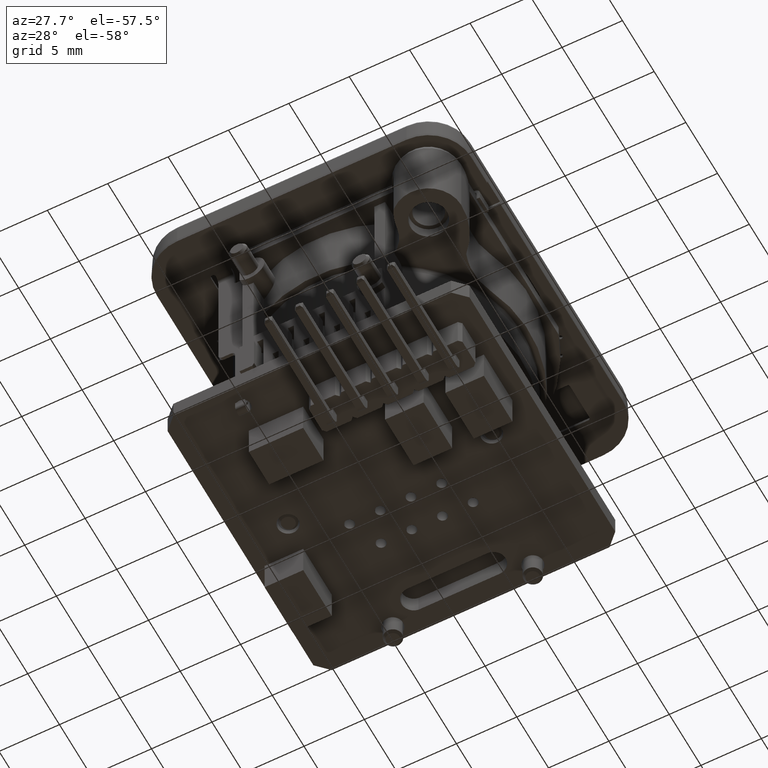
[diagram: clean part render]
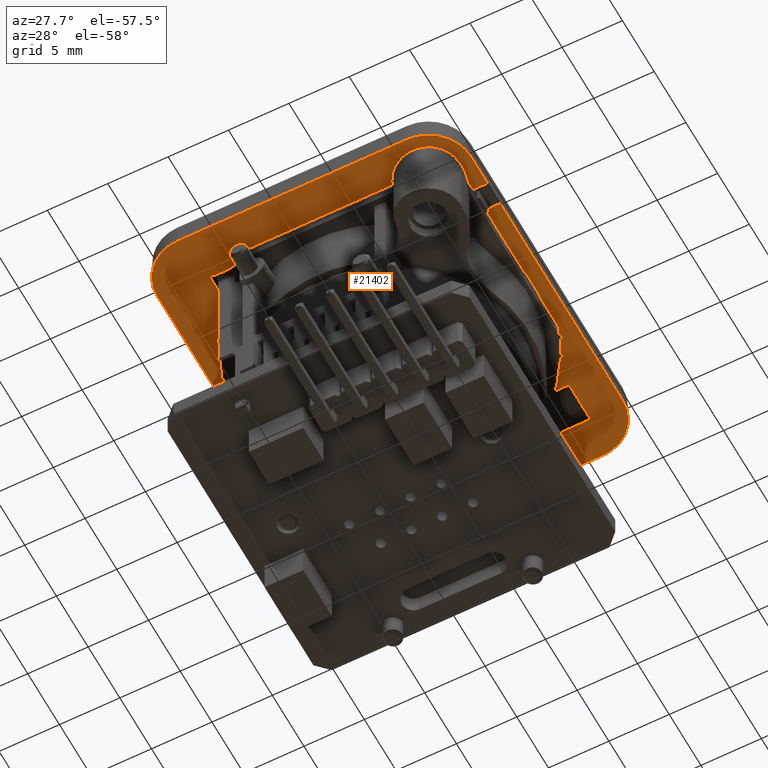
[diagram: same view with one face highlighted and labeled with its STEP entity id]
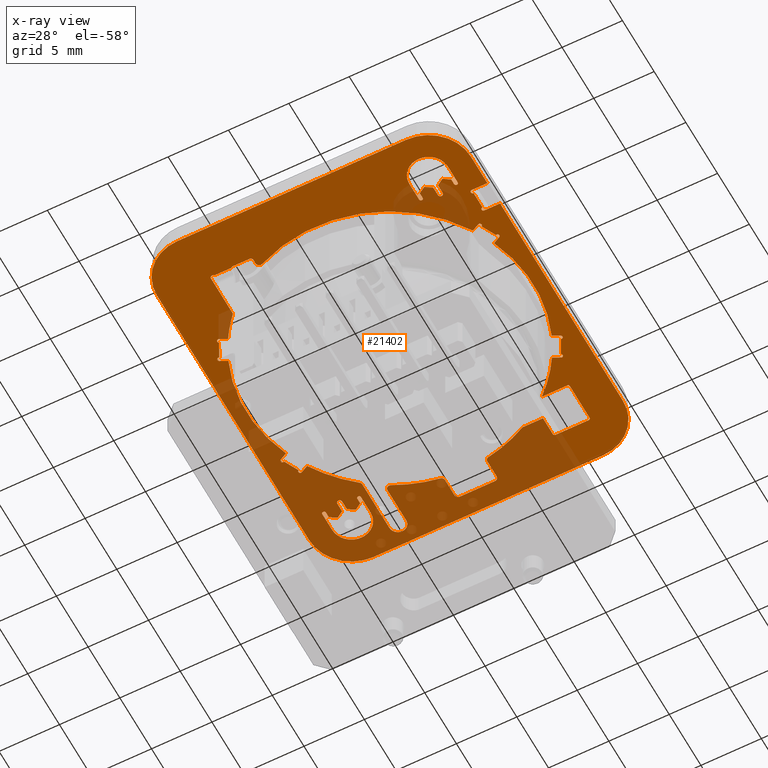
[diagram: x-ray of the same camera — body ghosted, the highlighted face saturated]
A machine part, auxiliary view. The second image highlights one B-rep face of the part: STEP entity #21402.
The next image is the same camera in x-ray: the body ghosted, the highlighted face saturated — about 38% of this face is hidden behind the body in this view.
In plain terms, the highlighted planar face has unit normal (0, 0, 1).
Its self-contained STEP definition (entity closure, byte-faithful):
#18491=DIRECTION('',(0.E0,1.E0,0.E0));
#18492=VECTOR('',#18491,1.4E0);
#18493=CARTESIAN_POINT('',(1.17E1,-9.1E0,-4.8E0));
#18494=LINE('',#18493,#18492);
#18495=CARTESIAN_POINT('',(1.17E1,-7.55E0,-4.8E0));
#18496=DIRECTION('',(0.E0,0.E0,1.E0));
#18497=DIRECTION('',(0.E0,1.E0,0.E0));
#18498=AXIS2_PLACEMENT_3D('',#18495,#18496,#18497);
#18500=DIRECTION('',(-1.E0,0.E0,0.E0));
#18501=VECTOR('',#18500,1.3E0);
#18502=CARTESIAN_POINT('',(1.3E1,-7.4E0,-4.8E0));
#18503=LINE('',#18502,#18501);
#18504=DIRECTION('',(0.E0,1.E0,0.E0));
#18505=VECTOR('',#18504,1.94E1);
#18506=CARTESIAN_POINT('',(1.3E1,-7.4E0,-4.8E0));
#18507=LINE('',#18506,#18505);
#18508=CARTESIAN_POINT('',(9.5E0,1.2E1,-4.8E0));
#18509=DIRECTION('',(0.E0,0.E0,1.E0));
#18510=DIRECTION('',(1.E0,0.E0,0.E0));
#18511=AXIS2_PLACEMENT_3D('',#18508,#18509,#18510);
#18513=DIRECTION('',(-1.E0,0.E0,0.E0));
#18514=VECTOR('',#18513,1.9E1);
#18515=CARTESIAN_POINT('',(9.5E0,1.55E1,-4.8E0));
#18516=LINE('',#18515,#18514);
#18517=CARTESIAN_POINT('',(-9.5E0,1.2E1,-4.8E0));
#18518=DIRECTION('',(0.E0,0.E0,1.E0));
#18519=DIRECTION('',(0.E0,1.E0,0.E0));
#18520=AXIS2_PLACEMENT_3D('',#18517,#18518,#18519);
#18522=DIRECTION('',(0.E0,-1.E0,0.E0));
#18523=VECTOR('',#18522,2.4E1);
#18524=CARTESIAN_POINT('',(-1.3E1,1.2E1,-4.8E0));
#18525=LINE('',#18524,#18523);
#18526=CARTESIAN_POINT('',(-9.5E0,-1.2E1,-4.8E0));
#18527=DIRECTION('',(0.E0,0.E0,1.E0));
#18528=DIRECTION('',(-1.E0,0.E0,0.E0));
#18529=AXIS2_PLACEMENT_3D('',#18526,#18527,#18528);
#18531=DIRECTION('',(1.E0,0.E0,0.E0));
#18532=VECTOR('',#18531,1.9E1);
#18533=CARTESIAN_POINT('',(-9.5E0,-1.55E1,-4.8E0));
#18534=LINE('',#18533,#18532);
#18535=CARTESIAN_POINT('',(9.5E0,-1.2E1,-4.8E0));
#18536=DIRECTION('',(0.E0,0.E0,1.E0));
#18537=DIRECTION('',(0.E0,-1.E0,0.E0));
#18538=AXIS2_PLACEMENT_3D('',#18535,#18536,#18537);
#18540=DIRECTION('',(0.E0,1.E0,0.E0));
#18541=VECTOR('',#18540,2.6E0);
#18542=CARTESIAN_POINT('',(1.3E1,-1.2E1,-4.8E0));
#18543=LINE('',#18542,#18541);
#18544=DIRECTION('',(-1.E0,0.E0,0.E0));
#18545=VECTOR('',#18544,1.3E0);
#18546=CARTESIAN_POINT('',(1.3E1,-9.4E0,-4.8E0));
#18547=LINE('',#18546,#18545);
#18548=CARTESIAN_POINT('',(1.17E1,-9.25E0,-4.8E0));
#18549=DIRECTION('',(0.E0,0.E0,1.E0));
#18550=DIRECTION('',(0.E0,1.E0,0.E0));
#18551=AXIS2_PLACEMENT_3D('',#18548,#18549,#18550);
#18553=DIRECTION('',(0.E0,-1.E0,0.E0));
#18554=VECTOR('',#18553,1.537528578014E0);
#18555=CARTESIAN_POINT('',(-1.11E1,1.2E1,-4.8E0));
#18556=LINE('',#18555,#18554);
#18557=CARTESIAN_POINT('',(-9.5E0,1.2E1,-4.8E0));
#18558=DIRECTION('',(0.E0,0.E0,1.E0));
#18559=DIRECTION('',(1.E0,0.E0,0.E0));
#18560=AXIS2_PLACEMENT_3D('',#18557,#18558,#18559);
#18562=DIRECTION('',(0.E0,1.E0,0.E0));
#18563=VECTOR('',#18562,1.537528578014E0);
#18564=CARTESIAN_POINT('',(-7.9E0,1.046247142199E1,-4.8E0));
#18565=LINE('',#18564,#18563);
#18566=CARTESIAN_POINT('',(-8.05E0,1.046247142199E1,-4.8E0));
#18567=DIRECTION('',(0.E0,0.E0,1.E0));
#18568=DIRECTION('',(-1.E0,0.E0,0.E0));
#18569=AXIS2_PLACEMENT_3D('',#18566,#18567,#18568);
#18571=DIRECTION('',(0.E0,-1.E0,0.E0));
#18572=VECTOR('',#18571,4.496113565559E-1);
#18573=CARTESIAN_POINT('',(-8.2E0,1.091208277854E1,-4.8E0));
#18574=LINE('',#18573,#18572);
#18575=DIRECTION('',(8.433914458129E-1,-5.372996083468E-1,0.E0));
#18576=VECTOR('',#18575,6.521289760888E-1);
#18577=CARTESIAN_POINT('',(-8.75E0,1.126247142199E1,-4.8E0));
#18578=LINE('',#18577,#18576);
#18579=DIRECTION('',(8.433914458129E-1,5.372996083468E-1,0.E0));
#18580=VECTOR('',#18579,6.521289760888E-1);
#18581=CARTESIAN_POINT('',(-9.3E0,1.091208277854E1,-4.8E0));
#18582=LINE('',#18581,#18580);
#18583=DIRECTION('',(0.E0,1.E0,0.E0));
#18584=VECTOR('',#18583,7.496113565559E-1);
#18585=CARTESIAN_POINT('',(-9.3E0,1.016247142199E1,-4.8E0));
#18586=LINE('',#18585,#18584);
#18587=CARTESIAN_POINT('',(-9.5E0,1.016247142199E1,-4.8E0));
#18588=DIRECTION('',(0.E0,0.E0,1.E0));
#18589=DIRECTION('',(-1.E0,0.E0,0.E0));
#18590=AXIS2_PLACEMENT_3D('',#18587,#18588,#18589);
#18592=DIRECTION('',(0.E0,-1.E0,0.E0));
#18593=VECTOR('',#18592,7.496113565559E-1);
#18594=CARTESIAN_POINT('',(-9.7E0,1.091208277854E1,-4.8E0));
#18595=LINE('',#18594,#18593);
#18596=DIRECTION('',(8.433914458129E-1,-5.372996083468E-1,0.E0));
#18597=VECTOR('',#18596,6.521289760888E-1);
#18598=CARTESIAN_POINT('',(-1.025E1,1.126247142199E1,-4.8E0));
#18599=LINE('',#18598,#18597);
#18600=DIRECTION('',(8.433914458129E-1,5.372996083468E-1,0.E0));
#18601=VECTOR('',#18600,6.521289760888E-1);
#18602=CARTESIAN_POINT('',(-1.08E1,1.091208277854E1,-4.8E0));
#18603=LINE('',#18602,#18601);
#18604=DIRECTION('',(0.E0,1.E0,0.E0));
#18605=VECTOR('',#18604,4.496113565559E-1);
#18606=CARTESIAN_POINT('',(-1.08E1,1.046247142199E1,-4.8E0));
#18607=LINE('',#18606,#18605);
#18608=CARTESIAN_POINT('',(-1.095E1,1.046247142199E1,-4.8E0));
#18609=DIRECTION('',(0.E0,0.E0,1.E0));
#18610=DIRECTION('',(-1.E0,1.184237892933E-14,0.E0));
#18611=AXIS2_PLACEMENT_3D('',#18608,#18609,#18610);
#18613=DIRECTION('',(0.E0,1.E0,0.E0));
#18614=VECTOR('',#18613,1.537528578014E0);
#18615=CARTESIAN_POINT('',(1.11E1,-1.2E1,-4.8E0));
#18616=LINE('',#18615,#18614);
#18617=CARTESIAN_POINT('',(9.5E0,-1.2E1,-4.8E0));
#18618=DIRECTION('',(0.E0,0.E0,1.E0));
#18619=DIRECTION('',(-1.E0,0.E0,0.E0));
#18620=AXIS2_PLACEMENT_3D('',#18617,#18618,#18619);
#18622=DIRECTION('',(0.E0,-1.E0,0.E0));
#18623=VECTOR('',#18622,1.537528578014E0);
#18624=CARTESIAN_POINT('',(7.9E0,-1.046247142199E1,-4.8E0));
#18625=LINE('',#18624,#18623);
#18626=CARTESIAN_POINT('',(8.05E0,-1.046247142199E1,-4.8E0));
#18627=DIRECTION('',(0.E0,0.E0,1.E0));
#18628=DIRECTION('',(1.E0,0.E0,0.E0));
#18629=AXIS2_PLACEMENT_3D('',#18626,#18627,#18628);
#18631=DIRECTION('',(0.E0,1.E0,0.E0));
#18632=VECTOR('',#18631,4.496113565559E-1);
#18633=CARTESIAN_POINT('',(8.2E0,-1.091208277854E1,-4.8E0));
#18634=LINE('',#18633,#18632);
#18635=DIRECTION('',(-8.433914458129E-1,5.372996083468E-1,0.E0));
#18636=VECTOR('',#18635,6.521289760888E-1);
#18637=CARTESIAN_POINT('',(8.75E0,-1.126247142199E1,-4.8E0));
#18638=LINE('',#18637,#18636);
#18639=DIRECTION('',(-8.433914458129E-1,-5.372996083468E-1,0.E0));
#18640=VECTOR('',#18639,6.521289760888E-1);
#18641=CARTESIAN_POINT('',(9.3E0,-1.091208277854E1,-4.8E0));
#18642=LINE('',#18641,#18640);
#18643=DIRECTION('',(0.E0,-1.E0,0.E0));
#18644=VECTOR('',#18643,7.496113565559E-1);
#18645=CARTESIAN_POINT('',(9.3E0,-1.016247142199E1,-4.8E0));
#18646=LINE('',#18645,#18644);
#18647=CARTESIAN_POINT('',(9.5E0,-1.016247142199E1,-4.8E0));
#18648=DIRECTION('',(0.E0,0.E0,1.E0));
#18649=DIRECTION('',(1.E0,0.E0,0.E0));
#18650=AXIS2_PLACEMENT_3D('',#18647,#18648,#18649);
#18652=DIRECTION('',(0.E0,1.E0,0.E0));
#18653=VECTOR('',#18652,7.496113565559E-1);
#18654=CARTESIAN_POINT('',(9.7E0,-1.091208277854E1,-4.8E0));
#18655=LINE('',#18654,#18653);
#18656=DIRECTION('',(-8.433914458129E-1,5.372996083468E-1,0.E0));
#18657=VECTOR('',#18656,6.521289760888E-1);
#18658=CARTESIAN_POINT('',(1.025E1,-1.126247142199E1,-4.8E0));
#18659=LINE('',#18658,#18657);
#18660=DIRECTION('',(-8.433914458129E-1,-5.372996083468E-1,0.E0));
#18661=VECTOR('',#18660,6.521289760888E-1);
#18662=CARTESIAN_POINT('',(1.08E1,-1.091208277854E1,-4.8E0));
#18663=LINE('',#18662,#18661);
#18664=DIRECTION('',(0.E0,-1.E0,0.E0));
#18665=VECTOR('',#18664,4.496113565559E-1);
#18666=CARTESIAN_POINT('',(1.08E1,-1.046247142199E1,-4.8E0));
#18667=LINE('',#18666,#18665);
#18668=CARTESIAN_POINT('',(1.095E1,-1.046247142199E1,-4.8E0));
#18669=DIRECTION('',(0.E0,0.E0,1.E0));
#18670=DIRECTION('',(1.E0,0.E0,0.E0));
#18671=AXIS2_PLACEMENT_3D('',#18668,#18669,#18670);
#18673=DIRECTION('',(0.E0,9.991880347481E-1,4.028984011081E-2));
#18674=VECTOR('',#18673,1.551259568867E0);
#18675=CARTESIAN_POINT('',(7.1E0,1.06E1,-4.8E0));
#18676=LINE('',#18675,#18674);
#18677=CARTESIAN_POINT('',(7.25E0,1.215E1,-4.8E0));
#18678=DIRECTION('',(0.E0,0.E0,1.E0));
#18679=DIRECTION('',(0.E0,1.E0,0.E0));
#18680=AXIS2_PLACEMENT_3D('',#18677,#18678,#18679);
#18682=DIRECTION('',(1.E0,0.E0,0.E0));
#18683=VECTOR('',#18682,2.75E0);
#18684=CARTESIAN_POINT('',(7.25E0,1.23E1,-4.8E0));
#18685=LINE('',#18684,#18683);
#18686=CARTESIAN_POINT('',(1.E1,1.215E1,-4.8E0));
#18687=DIRECTION('',(0.E0,0.E0,1.E0));
#18688=DIRECTION('',(1.E0,2.368475785867E-14,0.E0));
#18689=AXIS2_PLACEMENT_3D('',#18686,#18687,#18688);
#18691=DIRECTION('',(0.E0,-1.E0,0.E0));
#18692=VECTOR('',#18691,3.1E0);
#18693=CARTESIAN_POINT('',(1.015E1,1.215E1,-4.8E0));
#18694=LINE('',#18693,#18692);
#18695=CARTESIAN_POINT('',(1.E1,9.05E0,-4.8E0));
#18696=DIRECTION('',(0.E0,0.E0,1.E0));
#18697=DIRECTION('',(1.184237892933E-14,-1.E0,0.E0));
#18698=AXIS2_PLACEMENT_3D('',#18695,#18696,#18697);
#18700=DIRECTION('',(-1.E0,0.E0,0.E0));
#18701=VECTOR('',#18700,2.100632936747E0);
#18702=CARTESIAN_POINT('',(1.E1,8.9E0,-4.8E0));
#18703=LINE('',#18702,#18701);
#18704=CARTESIAN_POINT('',(0.E0,0.E0,-4.8E0));
#18705=DIRECTION('',(0.E0,0.E0,-1.E0));
#18706=DIRECTION('',(6.638123582565E-1,7.478991596639E-1,0.E0));
#18707=AXIS2_PLACEMENT_3D('',#18704,#18705,#18706);
#18709=DIRECTION('',(8.910065241884E-1,4.539904997395E-1,0.E0));
#18710=VECTOR('',#18709,6.624568159182E-1);
#18711=CARTESIAN_POINT('',(1.013784554123E1,6.231700232053E0,-4.8E0));
#18712=LINE('',#18711,#18710);
#18713=CARTESIAN_POINT('',(1.079619746117E1,6.398798354339E0,-4.8E0));
#18714=DIRECTION('',(0.E0,0.E0,-1.E0));
#18715=DIRECTION('',(-4.539904997395E-1,8.910065241884E-1,0.E0));
#18716=AXIS2_PLACEMENT_3D('',#18713,#18714,#18715);
#18718=DIRECTION('',(-4.539904997395E-1,8.910065241884E-1,0.E0));
#18719=VECTOR('',#18718,1.3E0);
#18720=CARTESIAN_POINT('',(1.145448368579E1,5.106838894266E0,-4.8E0));
#18721=LINE('',#18720,#18719);
#18722=CARTESIAN_POINT('',(1.152258226075E1,4.973187915638E0,-4.8E0));
#18723=DIRECTION('',(0.E0,0.E0,-1.E0));
#18724=DIRECTION('',(-4.539904997395E-1,8.910065241884E-1,0.E0));
#18725=AXIS2_PLACEMENT_3D('',#18722,#18723,#18724);
#18727=DIRECTION('',(-8.910065241884E-1,-4.539904997395E-1,0.E0));
#18728=VECTOR('',#18727,6.624568159182E-1);
#18729=CARTESIAN_POINT('',(1.159068083571E1,4.839536937009E0,-4.8E0));
#18730=LINE('',#18729,#18728);
#18731=CARTESIAN_POINT('',(0.E0,0.E0,-4.8E0));
#18732=DIRECTION('',(0.E0,0.E0,-1.E0));
#18733=DIRECTION('',(9.244056714903E-1,3.814107425290E-1,0.E0));
#18734=AXIS2_PLACEMENT_3D('',#18731,#18732,#18733);
#18736=DIRECTION('',(8.910065241884E-1,-4.539904997395E-1,0.E0));
#18737=VECTOR('',#18736,6.624568159182E-1);
#18738=CARTESIAN_POINT('',(1.100042749074E1,-4.538787836094E0,-4.8E0));
#18739=LINE('',#18738,#18737);
#18740=CARTESIAN_POINT('',(1.152258226075E1,-4.973187915637E0,-4.8E0));
#18741=DIRECTION('',(0.E0,0.E0,-1.E0));
#18742=DIRECTION('',(4.539904997395E-1,8.910065241884E-1,0.E0));
#18743=AXIS2_PLACEMENT_3D('',#18740,#18741,#18742);
#18745=DIRECTION('',(-4.539904997397E-1,-8.910065241883E-1,0.E0));
#18746=VECTOR('',#18745,1.3E0);
#18747=CARTESIAN_POINT('',(1.145448368579E1,-5.106838894265E0,-4.8E0));
#18748=LINE('',#18747,#18746);
#18749=CARTESIAN_POINT('',(1.079619746117E1,-6.398798354339E0,-4.8E0));
#18750=DIRECTION('',(0.E0,0.E0,-1.E0));
#18751=DIRECTION('',(4.539904997397E-1,8.910065241883E-1,0.E0));
#18752=AXIS2_PLACEMENT_3D('',#18749,#18750,#18751);
#18754=DIRECTION('',(-8.910065241884E-1,4.539904997395E-1,0.E0));
#18755=VECTOR('',#18754,6.624568159179E-1);
#18756=CARTESIAN_POINT('',(1.072809888621E1,-6.532449332967E0,-4.8E0));
#18757=LINE('',#18756,#18755);
#18758=CARTESIAN_POINT('',(0.E0,0.E0,-4.8E0));
#18759=DIRECTION('',(0.E0,0.E0,-1.E0));
#18760=DIRECTION('',(8.519197933807E-1,-5.236722884078E-1,0.E0));
#18761=AXIS2_PLACEMENT_3D('',#18758,#18759,#18760);
#18763=DIRECTION('',(0.E0,1.E0,0.E0));
#18764=VECTOR('',#18763,3.466578054052E-1);
#18765=CARTESIAN_POINT('',(-5.3E0,-1.1475E1,-4.8E0));
#18766=LINE('',#18765,#18764);
#18767=CARTESIAN_POINT('',(-5.5E0,-1.1475E1,-4.8E0));
#18768=DIRECTION('',(0.E0,0.E0,1.E0));
#18769=DIRECTION('',(0.E0,-1.E0,0.E0));
#18770=AXIS2_PLACEMENT_3D('',#18767,#18768,#18769);
#18772=DIRECTION('',(1.E0,0.E0,0.E0));
#18773=VECTOR('',#18772,1.4E0);
#18774=CARTESIAN_POINT('',(-6.9E0,-1.1675E1,-4.8E0));
#18775=LINE('',#18774,#18773);
#18776=CARTESIAN_POINT('',(-6.9E0,-1.1475E1,-4.8E0));
#18777=DIRECTION('',(0.E0,0.E0,1.E0));
#18778=DIRECTION('',(-7.806247497998E-1,-6.25E-1,0.E0));
#18779=AXIS2_PLACEMENT_3D('',#18776,#18777,#18778);
#18781=DIRECTION('',(1.E0,0.E0,0.E0));
#18782=VECTOR('',#18781,1.387750100080E0);
#18783=CARTESIAN_POINT('',(-8.443875050040E0,-1.16E1,-4.8E0));
#18784=LINE('',#18783,#18782);
#18785=CARTESIAN_POINT('',(-8.6E0,-1.1475E1,-4.8E0));
#18786=DIRECTION('',(0.E0,0.E0,1.E0));
#18787=DIRECTION('',(-1.E0,0.E0,0.E0));
#18788=AXIS2_PLACEMENT_3D('',#18785,#18786,#18787);
#18790=DIRECTION('',(0.E0,-1.E0,0.E0));
#18791=VECTOR('',#18790,3.464382046309E0);
#18792=CARTESIAN_POINT('',(-8.8E0,-8.010617953691E0,-4.8E0));
#18793=LINE('',#18792,#18791);
#18794=CARTESIAN_POINT('',(0.E0,0.E0,-4.8E0));
#18795=DIRECTION('',(0.E0,0.E0,-1.E0));
#18796=DIRECTION('',(-7.394957983193E-1,-6.731611725791E-1,0.E0));
#18797=AXIS2_PLACEMENT_3D('',#18794,#18795,#18796);
#18799=DIRECTION('',(-8.910065241884E-1,-4.539904997395E-1,0.E0));
#18800=VECTOR('',#18799,6.504228339155E-1);
#18801=CARTESIAN_POINT('',(-1.013809791582E1,-6.231289645758E0,-4.8E0));
#18802=LINE('',#18801,#18800);
#18803=CARTESIAN_POINT('',(-1.079619746117E1,-6.398798354339E0,-4.8E0));
#18804=DIRECTION('',(0.E0,0.E0,-1.E0));
#18805=DIRECTION('',(5.237903790078E-1,-8.518471921999E-1,0.E0));
#18806=AXIS2_PLACEMENT_3D('',#18803,#18804,#18805);
#18808=DIRECTION('',(4.539904997396E-1,-8.910065241884E-1,0.E0));
#18809=VECTOR('',#18808,1.3E0);
#18810=CARTESIAN_POINT('',(-1.145448368579E1,-5.106838894266E0,-4.8E0));
#18811=LINE('',#18810,#18809);
#18812=CARTESIAN_POINT('',(-1.152258226075E1,-4.973187915638E0,-4.8E0));
#18813=DIRECTION('',(0.E0,0.E0,-1.E0));
#18814=DIRECTION('',(4.539904997396E-1,-8.910065241884E-1,0.E0));
#18815=AXIS2_PLACEMENT_3D('',#18812,#18813,#18814);
#18817=DIRECTION('',(8.910065241884E-1,4.539904997395E-1,0.E0));
#18818=VECTOR('',#18817,6.624568159182E-1);
#18819=CARTESIAN_POINT('',(-1.159068083571E1,-4.839536937010E0,-4.8E0));
#18820=LINE('',#18819,#18818);
#18821=CARTESIAN_POINT('',(0.E0,0.E0,-4.8E0));
#18822=DIRECTION('',(0.E0,0.E0,-1.E0));
#18823=DIRECTION('',(-9.244056714903E-1,-3.814107425290E-1,0.E0));
#18824=AXIS2_PLACEMENT_3D('',#18821,#18822,#18823);
#18826=DIRECTION('',(-8.910065241884E-1,4.539904997395E-1,0.E0));
#18827=VECTOR('',#18826,6.624568159182E-1);
#18828=CARTESIAN_POINT('',(-1.100042749073E1,4.538787836095E0,-4.8E0));
#18829=LINE('',#18828,#18827);
#18830=CARTESIAN_POINT('',(-1.152258226075E1,4.973187915638E0,-4.8E0));
#18831=DIRECTION('',(0.E0,0.E0,-1.E0));
#18832=DIRECTION('',(-4.539904997395E-1,-8.910065241884E-1,0.E0));
#18833=AXIS2_PLACEMENT_3D('',#18830,#18831,#18832);
#18835=DIRECTION('',(4.539904997396E-1,8.910065241884E-1,0.E0));
#18836=VECTOR('',#18835,1.3E0);
#18837=CARTESIAN_POINT('',(-1.145448368579E1,5.106838894266E0,-4.8E0));
#18838=LINE('',#18837,#18836);
#18839=CARTESIAN_POINT('',(-1.079619746117E1,6.398798354339E0,-4.8E0));
#18840=DIRECTION('',(0.E0,0.E0,-1.E0));
#18841=DIRECTION('',(-4.539904997396E-1,-8.910065241884E-1,0.E0));
#18842=AXIS2_PLACEMENT_3D('',#18839,#18840,#18841);
#18844=DIRECTION('',(8.910065241884E-1,-4.539904997395E-1,0.E0));
#18845=VECTOR('',#18844,6.624568159182E-1);
#18846=CARTESIAN_POINT('',(-1.072809888621E1,6.532449332968E0,-4.8E0));
#18847=LINE('',#18846,#18845);
#18848=CARTESIAN_POINT('',(0.E0,0.E0,-4.8E0));
#18849=DIRECTION('',(0.E0,0.E0,-1.E0));
#18850=DIRECTION('',(-8.519197933806E-1,5.236722884078E-1,0.E0));
#18851=AXIS2_PLACEMENT_3D('',#18848,#18849,#18850);
#18853=CARTESIAN_POINT('',(-7.6E0,9.543584232352E0,-4.8E0));
#18854=DIRECTION('',(0.E0,0.E0,1.E0));
#18855=DIRECTION('',(6.229508196721E-1,-7.822610026518E-1,0.E0));
#18856=AXIS2_PLACEMENT_3D('',#18853,#18854,#18855);
#18858=DIRECTION('',(0.E0,1.E0,0.E0));
#18859=VECTOR('',#18858,4.256415767648E0);
#18860=CARTESIAN_POINT('',(-7.3E0,9.543584232352E0,-4.8E0));
#18861=LINE('',#18860,#18859);
#18862=CARTESIAN_POINT('',(-6.6E0,1.38E1,-4.8E0));
#18863=DIRECTION('',(0.E0,0.E0,-1.E0));
#18864=DIRECTION('',(-1.E0,0.E0,0.E0));
#18865=AXIS2_PLACEMENT_3D('',#18862,#18863,#18864);
#18867=DIRECTION('',(0.E0,-1.E0,0.E0));
#18868=VECTOR('',#18867,2.961180876129E0);
#18869=CARTESIAN_POINT('',(-5.9E0,1.38E1,-4.8E0));
#18870=LINE('',#18869,#18868);
#18871=CARTESIAN_POINT('',(-5.6E0,1.083881912387E1,-4.8E0));
#18872=DIRECTION('',(0.E0,0.E0,1.E0));
#18873=DIRECTION('',(-1.E0,0.E0,0.E0));
#18874=AXIS2_PLACEMENT_3D('',#18871,#18872,#18873);
#18876=CARTESIAN_POINT('',(0.E0,0.E0,-4.8E0));
#18877=DIRECTION('',(0.E0,0.E0,-1.E0));
#18878=DIRECTION('',(-4.590163934426E-1,8.884277970386E-1,0.E0));
#18879=AXIS2_PLACEMENT_3D('',#18876,#18877,#18878);
#18881=DIRECTION('',(0.E0,1.E0,0.E0));
#18882=VECTOR('',#18881,1.473466833705E0);
#18883=CARTESIAN_POINT('',(-1.75E0,1.202653316630E1,-4.8E0));
#18884=LINE('',#18883,#18882);
#18885=CARTESIAN_POINT('',(-1.45E0,1.35E1,-4.8E0));
#18886=DIRECTION('',(0.E0,0.E0,-1.E0));
#18887=DIRECTION('',(-1.E0,0.E0,0.E0));
#18888=AXIS2_PLACEMENT_3D('',#18885,#18886,#18887);
#18890=DIRECTION('',(1.E0,0.E0,0.E0));
#18891=VECTOR('',#18890,2.9E0);
#18892=CARTESIAN_POINT('',(-1.45E0,1.38E1,-4.8E0));
#18893=LINE('',#18892,#18891);
#18894=CARTESIAN_POINT('',(1.45E0,1.35E1,-4.8E0));
#18895=DIRECTION('',(0.E0,0.E0,-1.E0));
#18896=DIRECTION('',(0.E0,1.E0,0.E0));
#18897=AXIS2_PLACEMENT_3D('',#18894,#18895,#18896);
#18899=DIRECTION('',(0.E0,-1.E0,0.E0));
#18900=VECTOR('',#18899,1.473466833705E0);
#18901=CARTESIAN_POINT('',(1.75E0,1.35E1,-4.8E0));
#18902=LINE('',#18901,#18900);
#18903=CARTESIAN_POINT('',(0.E0,0.E0,-4.8E0));
#18904=DIRECTION('',(0.E0,0.E0,-1.E0));
#18905=DIRECTION('',(1.680327868852E-1,9.857814070734E-1,0.E0));
#18906=AXIS2_PLACEMENT_3D('',#18903,#18904,#18905);
#18908=DIRECTION('',(1.E0,0.E0,0.E0));
#18909=VECTOR('',#18908,1.691673086804E0);
#18910=CARTESIAN_POINT('',(5.408326913196E0,1.06E1,-4.8E0));
#18911=LINE('',#18910,#18909);
#19139=CARTESIAN_POINT('',(2.05E0,1.202653316630E1,-4.8E0));
#19140=DIRECTION('',(0.E0,0.E0,-1.E0));
#19141=DIRECTION('',(-1.680327868874E-1,-9.857814070730E-1,0.E0));
#19142=AXIS2_PLACEMENT_3D('',#19139,#19140,#19141);
#19173=CARTESIAN_POINT('',(-2.05E0,1.202653316630E1,-4.8E0));
#19174=DIRECTION('',(0.E0,0.E0,-1.E0));
#19175=DIRECTION('',(1.E0,0.E0,0.E0));
#19176=AXIS2_PLACEMENT_3D('',#19173,#19174,#19175);
#20074=CARTESIAN_POINT('',(-5.E0,-1.112834219459E1,-4.8E0));
#20075=DIRECTION('',(0.E0,0.E0,-1.E0));
#20076=DIRECTION('',(-1.E0,0.E0,0.E0));
#20077=AXIS2_PLACEMENT_3D('',#20074,#20075,#20076);
#20272=CARTESIAN_POINT('',(-6.9E0,-1.1675E1,-4.8E0));
#20273=CARTESIAN_POINT('',(-5.5E0,-1.1675E1,-4.8E0));
#20274=VERTEX_POINT('',#20272);
#20275=VERTEX_POINT('',#20273);
#20276=CARTESIAN_POINT('',(-5.3E0,-1.1475E1,-4.8E0));
#20277=VERTEX_POINT('',#20276);
#20278=CARTESIAN_POINT('',(9.5E0,-1.55E1,-4.8E0));
#20279=CARTESIAN_POINT('',(1.3E1,-1.2E1,-4.8E0));
#20280=VERTEX_POINT('',#20278);
#20281=VERTEX_POINT('',#20279);
#20282=CARTESIAN_POINT('',(-9.5E0,-1.55E1,-4.8E0));
#20283=VERTEX_POINT('',#20282);
#20284=CARTESIAN_POINT('',(-1.3E1,-1.2E1,-4.8E0));
#20285=VERTEX_POINT('',#20284);
#20286=CARTESIAN_POINT('',(-1.3E1,1.2E1,-4.8E0));
#20287=VERTEX_POINT('',#20286);
#20288=CARTESIAN_POINT('',(-9.5E0,1.55E1,-4.8E0));
#20289=VERTEX_POINT('',#20288);
#20290=CARTESIAN_POINT('',(9.5E0,1.55E1,-4.8E0));
#20291=VERTEX_POINT('',#20290);
#20292=CARTESIAN_POINT('',(-7.3E0,9.543584232352E0,-4.8E0));
#20293=CARTESIAN_POINT('',(-7.3E0,1.38E1,-4.8E0));
#20294=VERTEX_POINT('',#20292);
#20295=VERTEX_POINT('',#20293);
#20296=CARTESIAN_POINT('',(-8.8E0,-8.010617953691E0,-4.8E0));
#20297=CARTESIAN_POINT('',(-8.8E0,-1.1475E1,-4.8E0));
#20298=VERTEX_POINT('',#20296);
#20299=VERTEX_POINT('',#20297);
#20300=CARTESIAN_POINT('',(-1.11E1,1.2E1,-4.8E0));
#20301=CARTESIAN_POINT('',(-1.11E1,1.046247142199E1,-4.8E0));
#20302=VERTEX_POINT('',#20300);
#20303=VERTEX_POINT('',#20301);
#20304=CARTESIAN_POINT('',(-1.08E1,1.046247142199E1,-4.8E0));
#20305=VERTEX_POINT('',#20304);
#20306=CARTESIAN_POINT('',(-1.08E1,1.091208277854E1,-4.8E0));
#20307=VERTEX_POINT('',#20306);
#20308=CARTESIAN_POINT('',(-1.025E1,1.126247142199E1,-4.8E0));
#20309=VERTEX_POINT('',#20308);
#20310=CARTESIAN_POINT('',(-9.7E0,1.091208277854E1,-4.8E0));
#20311=VERTEX_POINT('',#20310);
#20312=CARTESIAN_POINT('',(-9.7E0,1.016247142199E1,-4.8E0));
#20313=VERTEX_POINT('',#20312);
#20314=CARTESIAN_POINT('',(-9.3E0,1.016247142199E1,-4.8E0));
#20315=VERTEX_POINT('',#20314);
#20316=CARTESIAN_POINT('',(-9.3E0,1.091208277854E1,-4.8E0));
#20317=VERTEX_POINT('',#20316);
#20318=CARTESIAN_POINT('',(-8.75E0,1.126247142199E1,-4.8E0));
#20319=VERTEX_POINT('',#20318);
#20320=CARTESIAN_POINT('',(-8.2E0,1.091208277854E1,-4.8E0));
#20321=VERTEX_POINT('',#20320);
#20322=CARTESIAN_POINT('',(-8.2E0,1.046247142199E1,-4.8E0));
#20323=VERTEX_POINT('',#20322);
#20324=CARTESIAN_POINT('',(-7.9E0,1.046247142199E1,-4.8E0));
#20325=VERTEX_POINT('',#20324);
#20326=CARTESIAN_POINT('',(-7.9E0,1.2E1,-4.8E0));
#20327=VERTEX_POINT('',#20326);
#20328=CARTESIAN_POINT('',(1.11E1,-1.2E1,-4.8E0));
#20329=CARTESIAN_POINT('',(1.11E1,-1.046247142199E1,-4.8E0));
#20330=VERTEX_POINT('',#20328);
#20331=VERTEX_POINT('',#20329);
#20332=CARTESIAN_POINT('',(1.08E1,-1.046247142199E1,-4.8E0));
#20333=VERTEX_POINT('',#20332);
#20334=CARTESIAN_POINT('',(1.08E1,-1.091208277854E1,-4.8E0));
#20335=VERTEX_POINT('',#20334);
#20336=CARTESIAN_POINT('',(1.025E1,-1.126247142199E1,-4.8E0));
#20337=VERTEX_POINT('',#20336);
#20338=CARTESIAN_POINT('',(9.7E0,-1.091208277854E1,-4.8E0));
#20339=VERTEX_POINT('',#20338);
#20340=CARTESIAN_POINT('',(9.7E0,-1.016247142199E1,-4.8E0));
#20341=VERTEX_POINT('',#20340);
#20342=CARTESIAN_POINT('',(9.3E0,-1.016247142199E1,-4.8E0));
#20343=VERTEX_POINT('',#20342);
#20344=CARTESIAN_POINT('',(9.3E0,-1.091208277854E1,-4.8E0));
#20345=VERTEX_POINT('',#20344);
#20346=CARTESIAN_POINT('',(8.75E0,-1.126247142199E1,-4.8E0));
#20347=VERTEX_POINT('',#20346);
#20348=CARTESIAN_POINT('',(8.2E0,-1.091208277854E1,-4.8E0));
#20349=VERTEX_POINT('',#20348);
#20350=CARTESIAN_POINT('',(8.2E0,-1.046247142199E1,-4.8E0));
#20351=VERTEX_POINT('',#20350);
#20352=CARTESIAN_POINT('',(7.9E0,-1.046247142199E1,-4.8E0));
#20353=VERTEX_POINT('',#20352);
#20354=CARTESIAN_POINT('',(7.9E0,-1.2E1,-4.8E0));
#20355=VERTEX_POINT('',#20354);
#20370=CARTESIAN_POINT('',(1.3E1,1.2E1,-4.8E0));
#20371=VERTEX_POINT('',#20370);
#20372=CARTESIAN_POINT('',(1.45E0,1.38E1,-4.8E0));
#20373=CARTESIAN_POINT('',(1.75E0,1.35E1,-4.8E0));
#20374=VERTEX_POINT('',#20372);
#20375=VERTEX_POINT('',#20373);
#20376=CARTESIAN_POINT('',(-1.45E0,1.38E1,-4.8E0));
#20377=VERTEX_POINT('',#20376);
#20378=CARTESIAN_POINT('',(-1.75E0,1.35E1,-4.8E0));
#20379=VERTEX_POINT('',#20378);
#20380=CARTESIAN_POINT('',(-5.9E0,1.38E1,-4.8E0));
#20381=CARTESIAN_POINT('',(-5.9E0,1.083881912387E1,-4.8E0));
#20382=VERTEX_POINT('',#20380);
#20383=VERTEX_POINT('',#20381);
#20394=CARTESIAN_POINT('',(-1.013784554123E1,6.231700232053E0,-4.8E0));
#20395=CARTESIAN_POINT('',(-7.413114754098E0,9.308905931557E0,-4.8E0));
#20396=VERTEX_POINT('',#20394);
#20397=VERTEX_POINT('',#20395);
#20398=CARTESIAN_POINT('',(-1.072809888621E1,6.532449332968E0,-4.8E0));
#20399=VERTEX_POINT('',#20398);
#20400=CARTESIAN_POINT('',(-1.100042749073E1,4.538787836095E0,-4.8E0));
#20401=CARTESIAN_POINT('',(-1.159068083571E1,4.839536937010E0,-4.8E0));
#20402=VERTEX_POINT('',#20400);
#20403=VERTEX_POINT('',#20401);
#20418=CARTESIAN_POINT('',(1.072809888621E1,-6.532449332967E0,-4.8E0));
#20419=CARTESIAN_POINT('',(1.013784554123E1,-6.231700232053E0,-4.8E0));
#20420=VERTEX_POINT('',#20418);
#20421=VERTEX_POINT('',#20419);
#20422=CARTESIAN_POINT('',(1.100042749074E1,-4.538787836094E0,-4.8E0));
#20423=CARTESIAN_POINT('',(1.159068083571E1,-4.839536937009E0,-4.8E0));
#20424=VERTEX_POINT('',#20422);
#20425=VERTEX_POINT('',#20423);
#20426=CARTESIAN_POINT('',(1.100042749074E1,4.538787836095E0,-4.8E0));
#20427=VERTEX_POINT('',#20426);
#20436=CARTESIAN_POINT('',(-1.100042749073E1,-4.538787836095E0,-4.8E0));
#20437=VERTEX_POINT('',#20436);
#20438=CARTESIAN_POINT('',(-1.159068083571E1,-4.839536937010E0,-4.8E0));
#20439=VERTEX_POINT('',#20438);
#20440=CARTESIAN_POINT('',(-1.013809791582E1,-6.231289645758E0,-4.8E0));
#20441=CARTESIAN_POINT('',(-1.071762890432E1,-6.526575433169E0,-4.8E0));
#20442=VERTEX_POINT('',#20440);
#20443=VERTEX_POINT('',#20441);
#20454=CARTESIAN_POINT('',(1.159068083571E1,4.839536937009E0,-4.8E0));
#20455=VERTEX_POINT('',#20454);
#20456=CARTESIAN_POINT('',(1.013784554123E1,6.231700232053E0,-4.8E0));
#20457=CARTESIAN_POINT('',(1.072809888621E1,6.532449332968E0,-4.8E0));
#20458=VERTEX_POINT('',#20456);
#20459=VERTEX_POINT('',#20457);
#20470=CARTESIAN_POINT('',(-5.462295081967E0,1.057229078476E1,-4.8E0));
#20471=VERTEX_POINT('',#20470);
#20490=CARTESIAN_POINT('',(-8.443875050040E0,-1.16E1,-4.8E0));
#20491=VERTEX_POINT('',#20490);
#20496=CARTESIAN_POINT('',(-7.056124949960E0,-1.16E1,-4.8E0));
#20497=VERTEX_POINT('',#20496);
#20538=CARTESIAN_POINT('',(-1.086429603613E1,6.265147375711E0,-4.8E0));
#20539=VERTEX_POINT('',#20538);
#20540=CARTESIAN_POINT('',(-1.145448368579E1,5.106838894266E0,-4.8E0));
#20541=VERTEX_POINT('',#20540);
#20560=CARTESIAN_POINT('',(-1.145448368579E1,-5.106838894266E0,-4.8E0));
#20561=VERTEX_POINT('',#20560);
#20562=CARTESIAN_POINT('',(-1.086429603613E1,-6.265147375711E0,-4.8E0));
#20563=VERTEX_POINT('',#20562);
#20582=CARTESIAN_POINT('',(1.086429603613E1,-6.265147375710E0,-4.8E0));
#20583=VERTEX_POINT('',#20582);
#20584=CARTESIAN_POINT('',(1.145448368579E1,-5.106838894265E0,-4.8E0));
#20585=VERTEX_POINT('',#20584);
#20604=CARTESIAN_POINT('',(1.145448368579E1,5.106838894266E0,-4.8E0));
#20605=VERTEX_POINT('',#20604);
#20606=CARTESIAN_POINT('',(1.086429603613E1,6.265147375711E0,-4.8E0));
#20607=VERTEX_POINT('',#20606);
#20622=CARTESIAN_POINT('',(-1.75E0,1.202653316630E1,-4.8E0));
#20624=VERTEX_POINT('',#20622);
#20626=CARTESIAN_POINT('',(-1.999590163934E0,1.173079874417E1,-4.8E0));
#20627=VERTEX_POINT('',#20626);
#20630=CARTESIAN_POINT('',(1.999590163934E0,1.173079874417E1,-4.8E0));
#20632=VERTEX_POINT('',#20630);
#20634=CARTESIAN_POINT('',(1.75E0,1.202653316630E1,-4.8E0));
#20635=VERTEX_POINT('',#20634);
#20638=CARTESIAN_POINT('',(-5.3E0,-1.112834219459E1,-4.8E0));
#20640=VERTEX_POINT('',#20638);
#20642=CARTESIAN_POINT('',(-4.877049180328E0,-1.085469443571E1,-4.8E0));
#20643=VERTEX_POINT('',#20642);
#20692=CARTESIAN_POINT('',(7.25E0,1.23E1,-4.8E0));
#20693=CARTESIAN_POINT('',(1.E1,1.23E1,-4.8E0));
#20694=VERTEX_POINT('',#20692);
#20695=VERTEX_POINT('',#20693);
#20696=CARTESIAN_POINT('',(1.015E1,1.215E1,-4.8E0));
#20697=VERTEX_POINT('',#20696);
#20698=CARTESIAN_POINT('',(1.015E1,9.05E0,-4.8E0));
#20699=VERTEX_POINT('',#20698);
#20700=CARTESIAN_POINT('',(1.E1,8.9E0,-4.8E0));
#20701=VERTEX_POINT('',#20700);
#20702=CARTESIAN_POINT('',(7.899367063253E0,8.9E0,-4.8E0));
#20703=VERTEX_POINT('',#20702);
#20704=CARTESIAN_POINT('',(5.408326913196E0,1.06E1,-4.8E0));
#20705=VERTEX_POINT('',#20704);
#20718=CARTESIAN_POINT('',(1.3E1,-7.4E0,-4.8E0));
#20719=CARTESIAN_POINT('',(1.17E1,-7.4E0,-4.8E0));
#20720=VERTEX_POINT('',#20718);
#20721=VERTEX_POINT('',#20719);
#20722=CARTESIAN_POINT('',(1.3E1,-9.4E0,-4.8E0));
#20723=CARTESIAN_POINT('',(1.17E1,-9.4E0,-4.8E0));
#20724=VERTEX_POINT('',#20722);
#20725=VERTEX_POINT('',#20723);
#20734=CARTESIAN_POINT('',(7.1E0,1.06E1,-4.8E0));
#20735=VERTEX_POINT('',#20734);
#20736=CARTESIAN_POINT('',(7.1E0,1.215E1,-4.8E0));
#20737=VERTEX_POINT('',#20736);
#20753=CARTESIAN_POINT('',(1.17E1,-7.7E0,-4.8E0));
#20754=VERTEX_POINT('',#20753);
#20755=CARTESIAN_POINT('',(1.17E1,-9.1E0,-4.8E0));
#20756=VERTEX_POINT('',#20755);
#21201=CARTESIAN_POINT('',(0.E0,0.E0,-4.8E0));
#21202=DIRECTION('',(0.E0,0.E0,1.E0));
#21203=DIRECTION('',(1.E0,0.E0,0.E0));
#21204=AXIS2_PLACEMENT_3D('',#21201,#21202,#21203);
#21205=PLANE('',#21204);
#21206=ORIENTED_EDGE('',*,*,#21195,.T.);
#21207=ORIENTED_EDGE('',*,*,#21058,.F.);
#21208=ORIENTED_EDGE('',*,*,#21071,.F.);
#21209=ORIENTED_EDGE('',*,*,#21101,.T.);
#21211=ORIENTED_EDGE('',*,*,#21210,.T.);
#21213=ORIENTED_EDGE('',*,*,#21212,.T.);
#21215=ORIENTED_EDGE('',*,*,#21214,.T.);
#21217=ORIENTED_EDGE('',*,*,#21216,.T.);
#21219=ORIENTED_EDGE('',*,*,#21218,.T.);
#21221=ORIENTED_EDGE('',*,*,#21220,.T.);
#21223=ORIENTED_EDGE('',*,*,#21222,.T.);
#21224=ORIENTED_EDGE('',*,*,#21084,.T.);
#21225=ORIENTED_EDGE('',*,*,#21114,.T.);
#21226=ORIENTED_EDGE('',*,*,#21127,.F.);
#21227=EDGE_LOOP('',(#21206,#21207,#21208,#21209,#21211,#21213,#21215,#21217,
#21219,#21221,#21223,#21224,#21225,#21226));
#21228=FACE_OUTER_BOUND('',#21227,.F.);
#21230=ORIENTED_EDGE('',*,*,#21229,.F.);
#21232=ORIENTED_EDGE('',*,*,#21231,.F.);
#21234=ORIENTED_EDGE('',*,*,#21233,.F.);
#21236=ORIENTED_EDGE('',*,*,#21235,.F.);
#21238=ORIENTED_EDGE('',*,*,#21237,.F.);
#21240=ORIENTED_EDGE('',*,*,#21239,.F.);
#21242=ORIENTED_EDGE('',*,*,#21241,.F.);
#21244=ORIENTED_EDGE('',*,*,#21243,.F.);
#21246=ORIENTED_EDGE('',*,*,#21245,.F.);
#21248=ORIENTED_EDGE('',*,*,#21247,.F.);
#21250=ORIENTED_EDGE('',*,*,#21249,.F.);
#21252=ORIENTED_EDGE('',*,*,#21251,.F.);
#21254=ORIENTED_EDGE('',*,*,#21253,.F.);
#21256=ORIENTED_EDGE('',*,*,#21255,.F.);
#21257=EDGE_LOOP('',(#21230,#21232,#21234,#21236,#21238,#21240,#21242,#21244,
#21246,#21248,#21250,#21252,#21254,#21256));
#21258=FACE_BOUND('',#21257,.F.);
#21260=ORIENTED_EDGE('',*,*,#21259,.F.);
#21262=ORIENTED_EDGE('',*,*,#21261,.F.);
#21264=ORIENTED_EDGE('',*,*,#21263,.F.);
#21266=ORIENTED_EDGE('',*,*,#21265,.F.);
#21268=ORIENTED_EDGE('',*,*,#21267,.F.);
#21270=ORIENTED_EDGE('',*,*,#21269,.F.);
#21272=ORIENTED_EDGE('',*,*,#21271,.F.);
#21274=ORIENTED_EDGE('',*,*,#21273,.F.);
#21276=ORIENTED_EDGE('',*,*,#21275,.F.);
#21278=ORIENTED_EDGE('',*,*,#21277,.F.);
#21280=ORIENTED_EDGE('',*,*,#21279,.F.);
#21282=ORIENTED_EDGE('',*,*,#21281,.F.);
#21284=ORIENTED_EDGE('',*,*,#21283,.F.);
#21286=ORIENTED_EDGE('',*,*,#21285,.F.);
#21287=EDGE_LOOP('',(#21260,#21262,#21264,#21266,#21268,#21270,#21272,#21274,
#21276,#21278,#21280,#21282,#21284,#21286));
#21288=FACE_BOUND('',#21287,.F.);
#21290=ORIENTED_EDGE('',*,*,#21289,.T.);
#21292=ORIENTED_EDGE('',*,*,#21291,.F.);
#21294=ORIENTED_EDGE('',*,*,#21293,.T.);
#21296=ORIENTED_EDGE('',*,*,#21295,.F.);
#21298=ORIENTED_EDGE('',*,*,#21297,.T.);
#21300=ORIENTED_EDGE('',*,*,#21299,.F.);
#21302=ORIENTED_EDGE('',*,*,#21301,.T.);
#21304=ORIENTED_EDGE('',*,*,#21303,.T.);
#21306=ORIENTED_EDGE('',*,*,#21305,.T.);
#21308=ORIENTED_EDGE('',*,*,#21307,.T.);
#21310=ORIENTED_EDGE('',*,*,#21309,.F.);
#21312=ORIENTED_EDGE('',*,*,#21311,.T.);
#21314=ORIENTED_EDGE('',*,*,#21313,.T.);
#21316=ORIENTED_EDGE('',*,*,#21315,.T.);
#21318=ORIENTED_EDGE('',*,*,#21317,.T.);
#21320=ORIENTED_EDGE('',*,*,#21319,.T.);
#21322=ORIENTED_EDGE('',*,*,#21321,.T.);
#21324=ORIENTED_EDGE('',*,*,#21323,.T.);
#21326=ORIENTED_EDGE('',*,*,#21325,.T.);
#21328=ORIENTED_EDGE('',*,*,#21327,.T.);
#21330=ORIENTED_EDGE('',*,*,#21329,.F.);
#21332=ORIENTED_EDGE('',*,*,#21331,.F.);
#21333=ORIENTED_EDGE('',*,*,#20774,.F.);
#21335=ORIENTED_EDGE('',*,*,#21334,.F.);
#21337=ORIENTED_EDGE('',*,*,#21336,.F.);
#21339=ORIENTED_EDGE('',*,*,#21338,.F.);
#21341=ORIENTED_EDGE('',*,*,#21340,.F.);
#21343=ORIENTED_EDGE('',*,*,#21342,.F.);
#21345=ORIENTED_EDGE('',*,*,#21344,.T.);
#21347=ORIENTED_EDGE('',*,*,#21346,.T.);
#21349=ORIENTED_EDGE('',*,*,#21348,.T.);
#21351=ORIENTED_EDGE('',*,*,#21350,.F.);
#21353=ORIENTED_EDGE('',*,*,#21352,.T.);
#21355=ORIENTED_EDGE('',*,*,#21354,.T.);
#21357=ORIENTED_EDGE('',*,*,#21356,.T.);
#21359=ORIENTED_EDGE('',*,*,#21358,.T.);
#21361=ORIENTED_EDGE('',*,*,#21360,.T.);
#21363=ORIENTED_EDGE('',*,*,#21362,.T.);
#21365=ORIENTED_EDGE('',*,*,#21364,.T.);
#21367=ORIENTED_EDGE('',*,*,#21366,.T.);
#21369=ORIENTED_EDGE('',*,*,#21368,.T.);
#21371=ORIENTED_EDGE('',*,*,#21370,.T.);
#21373=ORIENTED_EDGE('',*,*,#21372,.T.);
#21375=ORIENTED_EDGE('',*,*,#21374,.T.);
#21377=ORIENTED_EDGE('',*,*,#21376,.T.);
#21379=ORIENTED_EDGE('',*,*,#21378,.T.);
#21381=ORIENTED_EDGE('',*,*,#21380,.T.);
#21383=ORIENTED_EDGE('',*,*,#21382,.F.);
#21385=ORIENTED_EDGE('',*,*,#21384,.T.);
#21387=ORIENTED_EDGE('',*,*,#21386,.T.);
#21389=ORIENTED_EDGE('',*,*,#21388,.T.);
#21391=ORIENTED_EDGE('',*,*,#21390,.T.);
#21393=ORIENTED_EDGE('',*,*,#21392,.T.);
#21395=ORIENTED_EDGE('',*,*,#21394,.F.);
#21397=ORIENTED_EDGE('',*,*,#21396,.T.);
#21399=ORIENTED_EDGE('',*,*,#21398,.T.);
#21400=EDGE_LOOP('',(#21290,#21292,#21294,#21296,#21298,#21300,#21302,#21304,
#21306,#21308,#21310,#21312,#21314,#21316,#21318,#21320,#21322,#21324,#21326,
#21328,#21330,#21332,#21333,#21335,#21337,#21339,#21341,#21343,#21345,#21347,
#21349,#21351,#21353,#21355,#21357,#21359,#21361,#21363,#21365,#21367,#21369,
#21371,#21373,#21375,#21377,#21379,#21381,#21383,#21385,#21387,#21389,#21391,
#21393,#21395,#21397,#21399));
#21401=FACE_BOUND('',#21400,.F.);
#21402=ADVANCED_FACE('',(#21228,#21258,#21288,#21401),#21205,.F.);
#18499=CIRCLE('',#18498,1.5E-1);
#18512=CIRCLE('',#18511,3.5E0);
#18521=CIRCLE('',#18520,3.5E0);
#18530=CIRCLE('',#18529,3.5E0);
#18539=CIRCLE('',#18538,3.5E0);
#18552=CIRCLE('',#18551,1.5E-1);
#18561=CIRCLE('',#18560,1.6E0);
#18570=CIRCLE('',#18569,1.5E-1);
#18591=CIRCLE('',#18590,2.E-1);
#18612=CIRCLE('',#18611,1.5E-1);
#18621=CIRCLE('',#18620,1.6E0);
#18630=CIRCLE('',#18629,1.5E-1);
#18651=CIRCLE('',#18650,2.E-1);
#18672=CIRCLE('',#18671,1.5E-1);
#18681=CIRCLE('',#18680,1.5E-1);
#18690=CIRCLE('',#18689,1.5E-1);
#18699=CIRCLE('',#18698,1.5E-1);
#18708=CIRCLE('',#18707,1.19E1);
#18717=CIRCLE('',#18716,1.5E-1);
#18726=CIRCLE('',#18725,1.5E-1);
#18735=CIRCLE('',#18734,1.19E1);
#18744=CIRCLE('',#18743,1.5E-1);
#18753=CIRCLE('',#18752,1.5E-1);
#18762=CIRCLE('',#18761,1.19E1);
#18771=CIRCLE('',#18770,2.E-1);
#18780=CIRCLE('',#18779,2.E-1);
#18789=CIRCLE('',#18788,2.E-1);
#18798=CIRCLE('',#18797,1.19E1);
#18807=CIRCLE('',#18806,1.5E-1);
#18816=CIRCLE('',#18815,1.5E-1);
#18825=CIRCLE('',#18824,1.19E1);
#18834=CIRCLE('',#18833,1.5E-1);
#18843=CIRCLE('',#18842,1.5E-1);
#18852=CIRCLE('',#18851,1.19E1);
#18857=CIRCLE('',#18856,3.E-1);
#18866=CIRCLE('',#18865,7.E-1);
#18875=CIRCLE('',#18874,3.E-1);
#18880=CIRCLE('',#18879,1.19E1);
#18889=CIRCLE('',#18888,3.E-1);
#18898=CIRCLE('',#18897,3.E-1);
#18907=CIRCLE('',#18906,1.19E1);
#19143=CIRCLE('',#19142,3.E-1);
#19177=CIRCLE('',#19176,3.E-1);
#20078=CIRCLE('',#20077,3.E-1);
#20774=EDGE_CURVE('',#20275,#20277,#18771,.T.);
#21058=EDGE_CURVE('',#20721,#20754,#18499,.T.);
#21071=EDGE_CURVE('',#20720,#20721,#18503,.T.);
#21084=EDGE_CURVE('',#20281,#20724,#18543,.T.);
#21101=EDGE_CURVE('',#20720,#20371,#18507,.T.);
#21114=EDGE_CURVE('',#20724,#20725,#18547,.T.);
#21127=EDGE_CURVE('',#20756,#20725,#18552,.T.);
#21195=EDGE_CURVE('',#20756,#20754,#18494,.T.);
#21210=EDGE_CURVE('',#20371,#20291,#18512,.T.);
#21212=EDGE_CURVE('',#20291,#20289,#18516,.T.);
#21214=EDGE_CURVE('',#20289,#20287,#18521,.T.);
#21216=EDGE_CURVE('',#20287,#20285,#18525,.T.);
#21218=EDGE_CURVE('',#20285,#20283,#18530,.T.);
#21220=EDGE_CURVE('',#20283,#20280,#18534,.T.);
#21222=EDGE_CURVE('',#20280,#20281,#18539,.T.);
#21229=EDGE_CURVE('',#20302,#20303,#18556,.T.);
#21231=EDGE_CURVE('',#20327,#20302,#18561,.T.);
#21233=EDGE_CURVE('',#20325,#20327,#18565,.T.);
#21235=EDGE_CURVE('',#20323,#20325,#18570,.T.);
#21237=EDGE_CURVE('',#20321,#20323,#18574,.T.);
#21239=EDGE_CURVE('',#20319,#20321,#18578,.T.);
#21241=EDGE_CURVE('',#20317,#20319,#18582,.T.);
#21243=EDGE_CURVE('',#20315,#20317,#18586,.T.);
#21245=EDGE_CURVE('',#20313,#20315,#18591,.T.);
#21247=EDGE_CURVE('',#20311,#20313,#18595,.T.);
#21249=EDGE_CURVE('',#20309,#20311,#18599,.T.);
#21251=EDGE_CURVE('',#20307,#20309,#18603,.T.);
#21253=EDGE_CURVE('',#20305,#20307,#18607,.T.);
#21255=EDGE_CURVE('',#20303,#20305,#18612,.T.);
#21259=EDGE_CURVE('',#20330,#20331,#18616,.T.);
#21261=EDGE_CURVE('',#20355,#20330,#18621,.T.);
#21263=EDGE_CURVE('',#20353,#20355,#18625,.T.);
#21265=EDGE_CURVE('',#20351,#20353,#18630,.T.);
#21267=EDGE_CURVE('',#20349,#20351,#18634,.T.);
#21269=EDGE_CURVE('',#20347,#20349,#18638,.T.);
#21271=EDGE_CURVE('',#20345,#20347,#18642,.T.);
#21273=EDGE_CURVE('',#20343,#20345,#18646,.T.);
#21275=EDGE_CURVE('',#20341,#20343,#18651,.T.);
#21277=EDGE_CURVE('',#20339,#20341,#18655,.T.);
#21279=EDGE_CURVE('',#20337,#20339,#18659,.T.);
#21281=EDGE_CURVE('',#20335,#20337,#18663,.T.);
#21283=EDGE_CURVE('',#20333,#20335,#18667,.T.);
#21285=EDGE_CURVE('',#20331,#20333,#18672,.T.);
#21289=EDGE_CURVE('',#20735,#20737,#18676,.T.);
#21291=EDGE_CURVE('',#20694,#20737,#18681,.T.);
#21293=EDGE_CURVE('',#20694,#20695,#18685,.T.);
#21295=EDGE_CURVE('',#20697,#20695,#18690,.T.);
#21297=EDGE_CURVE('',#20697,#20699,#18694,.T.);
#21299=EDGE_CURVE('',#20701,#20699,#18699,.T.);
#21301=EDGE_CURVE('',#20701,#20703,#18703,.T.);
#21303=EDGE_CURVE('',#20703,#20458,#18708,.T.);
#21305=EDGE_CURVE('',#20458,#20459,#18712,.T.);
#21307=EDGE_CURVE('',#20459,#20607,#18717,.T.);
#21309=EDGE_CURVE('',#20605,#20607,#18721,.T.);
#21311=EDGE_CURVE('',#20605,#20455,#18726,.T.);
#21313=EDGE_CURVE('',#20455,#20427,#18730,.T.);
#21315=EDGE_CURVE('',#20427,#20424,#18735,.T.);
#21317=EDGE_CURVE('',#20424,#20425,#18739,.T.);
#21319=EDGE_CURVE('',#20425,#20585,#18744,.T.);
#21321=EDGE_CURVE('',#20585,#20583,#18748,.T.);
#21323=EDGE_CURVE('',#20583,#20420,#18753,.T.);
#21325=EDGE_CURVE('',#20420,#20421,#18757,.T.);
#21327=EDGE_CURVE('',#20421,#20643,#18762,.T.);
#21329=EDGE_CURVE('',#20640,#20643,#20078,.T.);
#21331=EDGE_CURVE('',#20277,#20640,#18766,.T.);
#21334=EDGE_CURVE('',#20274,#20275,#18775,.T.);
#21336=EDGE_CURVE('',#20497,#20274,#18780,.T.);
#21338=EDGE_CURVE('',#20491,#20497,#18784,.T.);
#21340=EDGE_CURVE('',#20299,#20491,#18789,.T.);
#21342=EDGE_CURVE('',#20298,#20299,#18793,.T.);
#21344=EDGE_CURVE('',#20298,#20442,#18798,.T.);
#21346=EDGE_CURVE('',#20442,#20443,#18802,.T.);
#21348=EDGE_CURVE('',#20443,#20563,#18807,.T.);
#21350=EDGE_CURVE('',#20561,#20563,#18811,.T.);
#21352=EDGE_CURVE('',#20561,#20439,#18816,.T.);
#21354=EDGE_CURVE('',#20439,#20437,#18820,.T.);
#21356=EDGE_CURVE('',#20437,#20402,#18825,.T.);
#21358=EDGE_CURVE('',#20402,#20403,#18829,.T.);
#21360=EDGE_CURVE('',#20403,#20541,#18834,.T.);
#21362=EDGE_CURVE('',#20541,#20539,#18838,.T.);
#21364=EDGE_CURVE('',#20539,#20399,#18843,.T.);
#21366=EDGE_CURVE('',#20399,#20396,#18847,.T.);
#21368=EDGE_CURVE('',#20396,#20397,#18852,.T.);
#21370=EDGE_CURVE('',#20397,#20294,#18857,.T.);
#21372=EDGE_CURVE('',#20294,#20295,#18861,.T.);
#21374=EDGE_CURVE('',#20295,#20382,#18866,.T.);
#21376=EDGE_CURVE('',#20382,#20383,#18870,.T.);
#21378=EDGE_CURVE('',#20383,#20471,#18875,.T.);
#21380=EDGE_CURVE('',#20471,#20627,#18880,.T.);
#21382=EDGE_CURVE('',#20624,#20627,#19177,.T.);
#21384=EDGE_CURVE('',#20624,#20379,#18884,.T.);
#21386=EDGE_CURVE('',#20379,#20377,#18889,.T.);
#21388=EDGE_CURVE('',#20377,#20374,#18893,.T.);
#21390=EDGE_CURVE('',#20374,#20375,#18898,.T.);
#21392=EDGE_CURVE('',#20375,#20635,#18902,.T.);
#21394=EDGE_CURVE('',#20632,#20635,#19143,.T.);
#21396=EDGE_CURVE('',#20632,#20705,#18907,.T.);
#21398=EDGE_CURVE('',#20705,#20735,#18911,.T.);